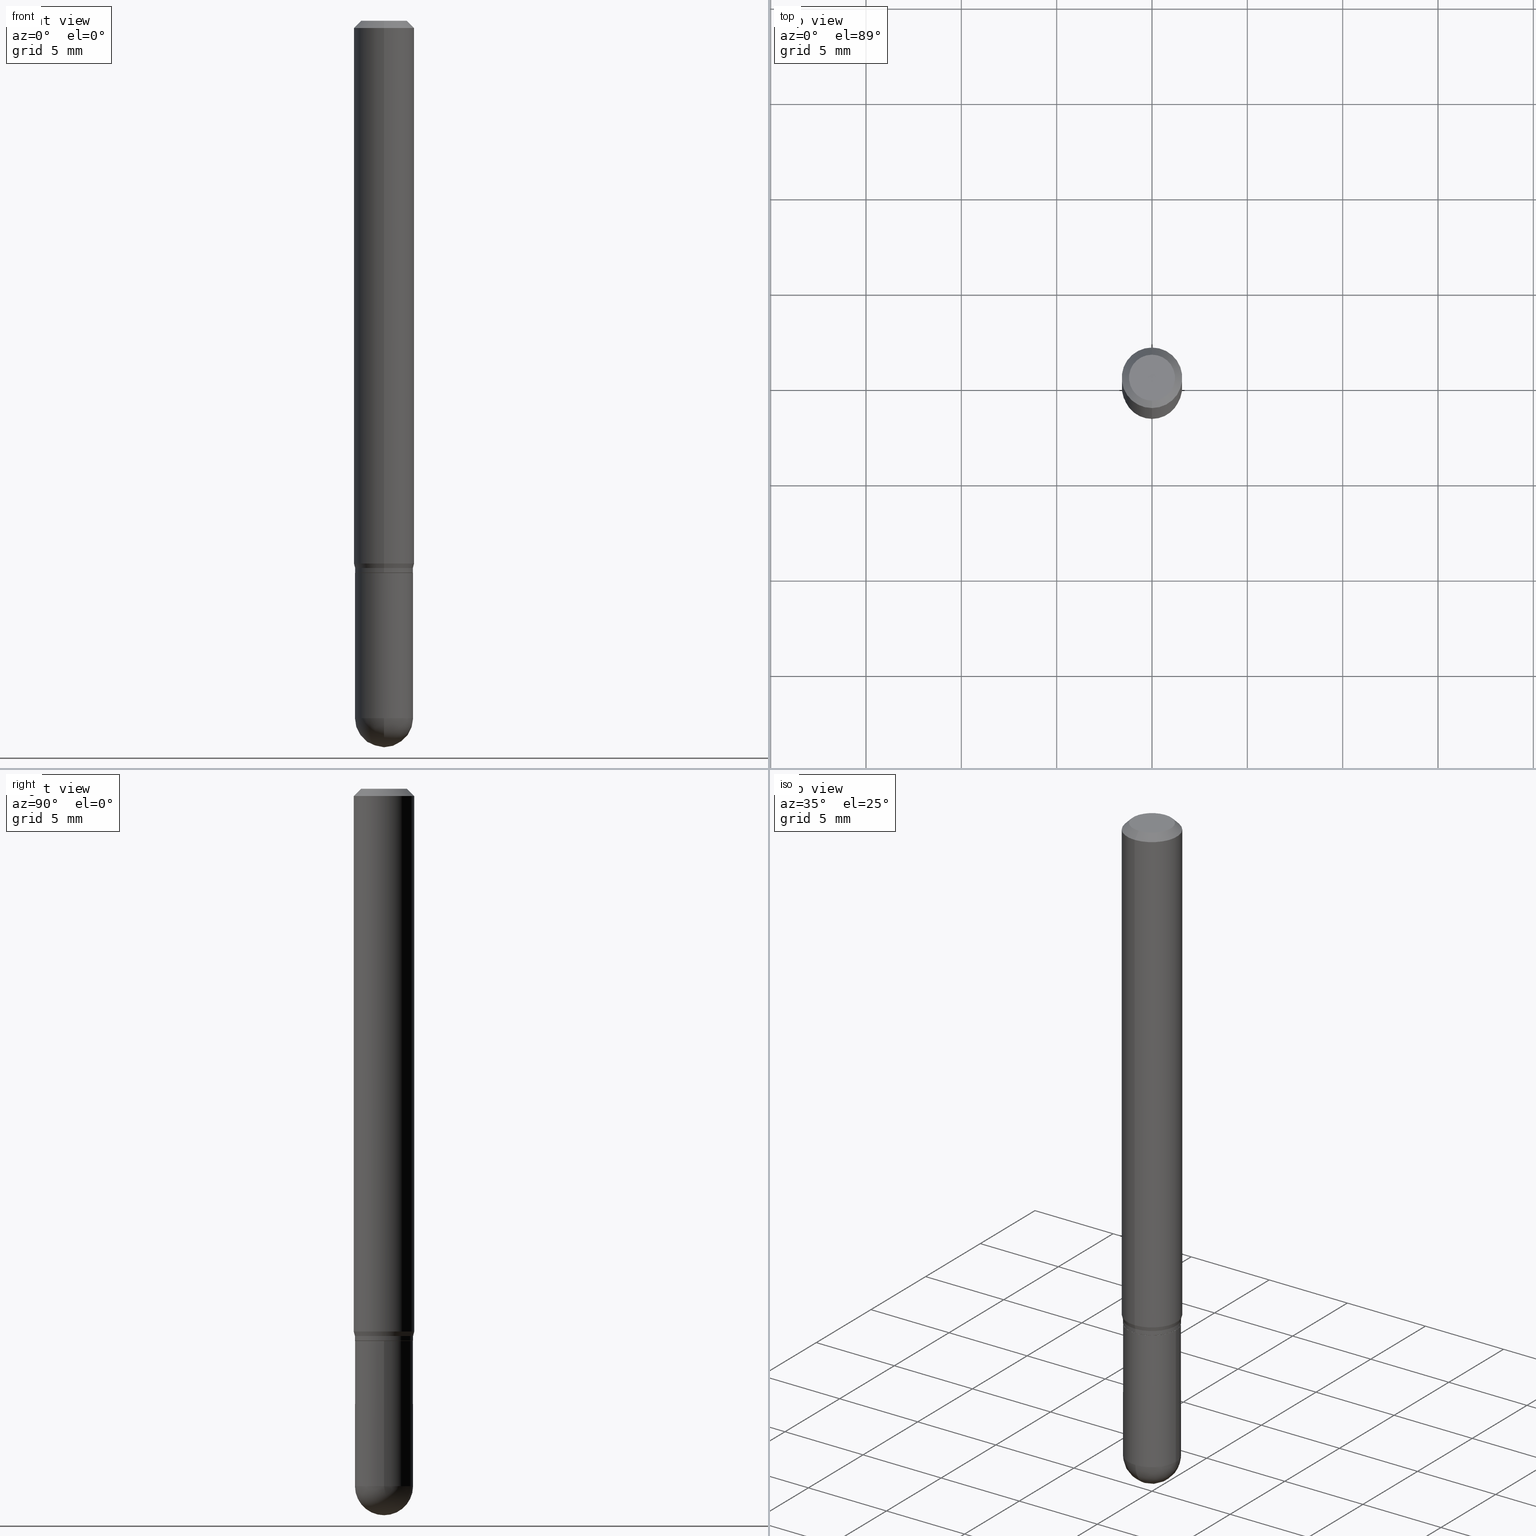
[diagram: canonical four-view strip — front | top / right | iso, engineering-drawing reading convention]
A machine part, canonical four-view strip (front | top / right | iso — engineering-drawing reading convention). The complete STEP part file that produces these views, byte-faithful:
ISO-10303-21;
HEADER;
FILE_DESCRIPTION (( 'STEP AP203' ),
    '1' );
FILE_NAME ('04453.STEP',
    '2024-03-08T19:40:41',
    ( '' ),
    ( '' ),
    'SwSTEP 2.0',
    'SolidWorks 2023',
    '' );
FILE_SCHEMA (( 'CONFIG_CONTROL_DESIGN' ));
ENDSEC;

DATA;
#1 = CARTESIAN_POINT ( 'NONE',  ( 2.763319240958280616E-29, -3.945460566701054609E-15, -1.130000000000000115 ) ) ;
#2 = VERTEX_POINT ( 'NONE', #9 ) ;
#3 = DIRECTION ( 'NONE',  ( -1.000000000000000000, 6.982962677686265922E-15, -4.883557194083112340E-29 ) ) ;
#4 = DATE_TIME_ROLE ( 'creation_date' ) ;
#5 = ORIENTED_EDGE ( 'NONE', *, *, #332, .T. ) ;
#6 = CARTESIAN_POINT ( 'NONE',  ( 2.740503205991935058E-29, -3.912883886846660154E-15, -1.120669872981078674 ) ) ;
#7 = CIRCLE ( 'NONE', #67, 0.05999999999999995615 ) ;
#8 = AXIS2_PLACEMENT_3D ( 'NONE', #412, #57, #253 ) ;
#9 = CARTESIAN_POINT ( 'NONE',  ( -4.364351673553912750E-16, -0.06250000000000005551, -0.01499999999999984852 ) ) ;
#10 = CARTESIAN_POINT ( 'NONE',  ( -4.364351673553916201E-16, -0.06250000000000000000, 2.182223764768282415E-16 ) ) ;
#11 = EDGE_CURVE ( 'NONE', #404, #190, #499, .T. ) ;
#12 = COORDINATED_UNIVERSAL_TIME_OFFSET ( 5, 0, .BEHIND. ) ;
#13 = ORIENTED_EDGE ( 'NONE', *, *, #228, .F. ) ;
#14 = AXIS2_PLACEMENT_3D ( 'NONE', #136, #379, #377 ) ;
#15 = CIRCLE ( 'NONE', #395, 0.06000000000000001166 ) ;
#16 = PERSON_AND_ORGANIZATION ( #491, #21 ) ;
#17 = LINE ( 'NONE', #143, #184 ) ;
#18 = DIRECTION ( 'NONE',  ( 1.000000000000000000, -6.982962677686268288E-15, 0.000000000000000000 ) ) ;
#19 = DIRECTION ( 'NONE',  ( -6.982962677686265922E-15, -1.000000000000000000, 3.491558023629251863E-15 ) ) ;
#20 = ORIENTED_EDGE ( 'NONE', *, *, #26, .T. ) ;
#21 = ORGANIZATION ( 'UNSPECIFIED', 'UNSPECIFIED', '' ) ;
#22 = CYLINDRICAL_SURFACE ( 'NONE', #454, 0.06250000000000000000 ) ;
#23 = DIRECTION ( 'NONE',  ( -2.445415257485203862E-29, 3.491558023629251863E-15, 1.000000000000000000 ) ) ;
#24 = CARTESIAN_POINT ( 'NONE',  ( 3.668122886227822345E-31, -5.237337035443900549E-17, -0.01500000000000006710 ) ) ;
#25 = EDGE_CURVE ( 'NONE', #505, #2, #361, .T. ) ;
#26 = EDGE_CURVE ( 'NONE', #509, #362, #169, .T. ) ;
#27 = DIRECTION ( 'NONE',  ( -6.982962677686265922E-15, -1.000000000000000000, 3.483106191921935554E-15 ) ) ;
#28 = DIRECTION ( 'NONE',  ( -2.445415257485203862E-29, 3.491558023629251863E-15, 1.000000000000000000 ) ) ;
#29 = DIRECTION ( 'NONE',  ( -2.445415257485203862E-29, 3.491558023629251863E-15, 1.000000000000000000 ) ) ;
#30 = DIRECTION ( 'NONE',  ( -2.445415257485203862E-29, 3.491558023629251863E-15, 1.000000000000000000 ) ) ;
#31 = CARTESIAN_POINT ( 'NONE',  ( -4.364351673553640100E-16, -0.06250000000000388578, -1.120669872981078452 ) ) ;
#32 = EDGE_LOOP ( 'NONE', ( #44, #92, #233, #347 ) ) ;
#33 = DIRECTION ( 'NONE',  ( 1.000000000000000000, -7.105427357601001070E-15, 4.926315508542082329E-29 ) ) ;
#34 = APPROVAL_DATE_TIME ( #343, #460 ) ;
#35 = EDGE_LOOP ( 'NONE', ( #112, #479, #101, #182 ) ) ;
#36 = CARTESIAN_POINT ( 'NONE',  ( 3.316907271900976096E-16, 0.04749999999999999362, -1.985973018849175399E-16 ) ) ;
#37 = ORIENTED_EDGE ( 'NONE', *, *, #125, .T. ) ;
#38 = AXIS2_PLACEMENT_3D ( 'NONE', #500, #305, #59 ) ;
#39 = LOCAL_TIME ( 14, 40, 41.00000000000000000, #326 ) ;
#40 = ORIENTED_EDGE ( 'NONE', *, *, #351, .F. ) ;
#41 = ADVANCED_FACE ( 'NONE', ( #413 ), #331, .T. ) ;
#42 = EDGE_CURVE ( 'NONE', #473, #2, #133, .T. ) ;
#43 = ORIENTED_EDGE ( 'NONE', *, *, #207, .F. ) ;
#44 = ORIENTED_EDGE ( 'NONE', *, *, #458, .F. ) ;
#45 = AXIS2_PLACEMENT_3D ( 'NONE', #419, #65, #453 ) ;
#46 = DIRECTION ( 'NONE',  ( -6.982962677686265922E-15, -1.000000000000000000, 4.553079989440423315E-15 ) ) ;
#47 = APPROVAL ( #203, 'UNSPECIFIED' ) ;
#48 = ORIENTED_EDGE ( 'NONE', *, *, #228, .T. ) ;
#49 = APPROVAL_DATE_TIME ( #172, #47 ) ;
#50 = AXIS2_PLACEMENT_3D ( 'NONE', #411, #261, #102 ) ;
#51 = CIRCLE ( 'NONE', #360, 0.06000000000000006023 ) ;
#52 = EDGE_CURVE ( 'NONE', #359, #473, #369, .T. ) ;
#53 = CARTESIAN_POINT ( 'NONE',  ( 4.263256414560951014E-16, 0.05999999999999495320, -1.440000000000000391 ) ) ;
#54 = EDGE_LOOP ( 'NONE', ( #43, #198, #5, #391 ) ) ;
#55 = DIRECTION ( 'NONE',  ( -6.982962677686265922E-15, -1.000000000000000000, 3.491558023629251863E-15 ) ) ;
#56 = AXIS2_PLACEMENT_3D ( 'NONE', #448, #376, #212 ) ;
#57 = DIRECTION ( 'NONE',  ( -2.445468806185136597E-29, 3.491481338843145583E-15, 1.000000000000000000 ) ) ;
#58 = ADVANCED_FACE ( 'NONE', ( #144 ), #22, .T. ) ;
#59 = DIRECTION ( 'NONE',  ( 1.000000000000000000, -6.982962677686266711E-15, 4.876176775795935793E-29 ) ) ;
#60 = EDGE_CURVE ( 'NONE', #153, #304, #317, .T. ) ;
#61 = CARTESIAN_POINT ( 'NONE',  ( -4.189777606611479882E-16, -0.06000000000000396683, -1.139499999999999735 ) ) ;
#62 = ORIENTED_EDGE ( 'NONE', *, *, #206, .F. ) ;
#63 = DIRECTION ( 'NONE',  ( -6.982962677686265922E-15, -1.000000000000000000, 3.483106191921935554E-15 ) ) ;
#64 = DIRECTION ( 'NONE',  ( -6.982962677686265922E-15, -1.000000000000000000, 4.591341165822291216E-15 ) ) ;
#65 = DIRECTION ( 'NONE',  ( -2.445415257485203581E-29, 3.491558023629251863E-15, 1.000000000000000000 ) ) ;
#66 = APPROVAL_STATUS ( 'not_yet_approved' ) ;
#67 = AXIS2_PLACEMENT_3D ( 'NONE', #386, #33, #161 ) ;
#68 = LOCAL_TIME ( 14, 40, 41.00000000000000000, #387 ) ;
#69 = EDGE_CURVE ( 'NONE', #371, #193, #287, .T. ) ;
#70 = ORIENTED_EDGE ( 'NONE', *, *, #69, .F. ) ;
#71 = CARTESIAN_POINT ( 'NONE',  ( 0.000000000000000000, 0.000000000000000000, 0.000000000000000000 ) ) ;
#72 = COORDINATED_UNIVERSAL_TIME_OFFSET ( 5, 0, .BEHIND. ) ;
#73 = ORIENTED_EDGE ( 'NONE', *, *, #165, .T. ) ;
#74 = FACE_OUTER_BOUND ( 'NONE', #118, .T. ) ;
#75 = FACE_OUTER_BOUND ( 'NONE', #54, .T. ) ;
#76 = EDGE_LOOP ( 'NONE', ( #464, #162, #325, #385, #13 ) ) ;
#77 = CYLINDRICAL_SURFACE ( 'NONE', #291, 0.06000000000000001166 ) ;
#78 = ADVANCED_FACE ( 'NONE', ( #219 ), #120, .T. ) ;
#79 = AXIS2_PLACEMENT_3D ( 'NONE', #213, #296, #373 ) ;
#80 = CIRCLE ( 'NONE', #8, 0.06000000000000001166 ) ;
#81 = PRODUCT_DEFINITION ( 'UNKNOWN', '', #194, #138 ) ;
#82 = APPLICATION_PROTOCOL_DEFINITION ( 'international standard', 'config_control_design', 1994, #335 ) ;
#83 = ORIENTED_EDGE ( 'NONE', *, *, #11, .F. ) ;
#84 = DIRECTION ( 'NONE',  ( -2.445415257485203862E-29, 3.491558023629251863E-15, 1.000000000000000000 ) ) ;
#85 = DATE_AND_TIME ( #443, #375 ) ;
#86 = EDGE_LOOP ( 'NONE', ( #230, #73, #402, #381 ) ) ;
#87 = EDGE_CURVE ( 'NONE', #153, #435, #178, .T. ) ;
#88 = ORIENTED_EDGE ( 'NONE', *, *, #420, .T. ) ;
#89 = AXIS2_PLACEMENT_3D ( 'NONE', #245, #168, #46 ) ;
#90 = AXIS2_PLACEMENT_3D ( 'NONE', #363, #185, #64 ) ;
#91 = DATE_AND_TIME ( #486, #288 ) ;
#92 = ORIENTED_EDGE ( 'NONE', *, *, #26, .F. ) ;
#93 = VECTOR ( 'NONE', #255, 39.37007874015748143 ) ;
#94 = CARTESIAN_POINT ( 'NONE',  ( -3.773273898774340269E-16, -0.04749999999999999362, 1.003524145973332999E-16 ) ) ;
#95 = DIRECTION ( 'NONE',  ( 5.024295867788190974E-15, 0.7071067811865681119, 0.7071067811865270336 ) ) ;
#96 = ADVANCED_FACE ( 'NONE', ( #494 ), #341, .T. ) ;
#97 = DIRECTION ( 'NONE',  ( -2.445415257485203862E-29, 3.491558023629251863E-15, 1.000000000000000000 ) ) ;
#98 = CARTESIAN_POINT ( 'NONE',  ( 4.263256414560890864E-16, 0.05999999999999625078, -1.130000000000000338 ) ) ;
#99 = AXIS2_PLACEMENT_3D ( 'NONE', #380, #29, #19 ) ;
#100 = CARTESIAN_POINT ( 'NONE',  ( 0.05999999999999999778, -4.399266486942362543E-15, -1.140000000000000124 ) ) ;
#101 = ORIENTED_EDGE ( 'NONE', *, *, #125, .F. ) ;
#102 = DIRECTION ( 'NONE',  ( -1.000000000000000000, 6.982962677686265922E-15, -4.876176775795935793E-29 ) ) ;
#103 = CARTESIAN_POINT ( 'NONE',  ( 4.352074256530896070E-16, 0.05999999999999625078, -1.130000000000000338 ) ) ;
#104 = CARTESIAN_POINT ( 'NONE',  ( 4.227729277772874483E-16, 0.05949999999999602135, -1.140000000000000346 ) ) ;
#105 = PERSON_AND_ORGANIZATION_ROLE ( 'design_owner' ) ;
#106 = DIRECTION ( 'NONE',  ( -6.982962677686265922E-15, -1.000000000000000000, 4.591341165822291216E-15 ) ) ;
#107 = EDGE_LOOP ( 'NONE', ( #205, #204, #284, #237 ) ) ;
#108 = CIRCLE ( 'NONE', #154, 0.06250000000000000000 ) ;
#109 = CYLINDRICAL_SURFACE ( 'NONE', #170, 0.06000000000000012962 ) ;
#110 = AXIS2_PLACEMENT_3D ( 'NONE', #111, #396, #197 ) ;
#111 = CARTESIAN_POINT ( 'NONE',  ( 3.668122886227822345E-31, -5.237337035443900549E-17, -0.01500000000000006710 ) ) ;
#112 = ORIENTED_EDGE ( 'NONE', *, *, #165, .F. ) ;
#113 = PLANE ( 'NONE',  #214 ) ;
#114 = ADVANCED_FACE ( 'NONE', ( #139 ), #276, .T. ) ;
#115 = ORIENTED_EDGE ( 'NONE', *, *, #410, .T. ) ;
#116 = ADVANCED_FACE ( 'NONE', ( #455 ), #264, .T. ) ;
#117 = LINE ( 'NONE', #192, #292 ) ;
#118 = EDGE_LOOP ( 'NONE', ( #20, #477 ) ) ;
#119 = CARTESIAN_POINT ( 'NONE',  ( -4.189777606611496152E-16, -0.06000000000000414030, -1.129999999999999893 ) ) ;
#120 = CONICAL_SURFACE ( 'NONE', #403, 0.06000000000000019901, 0.2617993877991505181 ) ;
#121 = CONICAL_SURFACE ( 'NONE', #110, 0.06250000000000000000, 0.7853981633974483900 ) ;
#122 = APPROVAL_DATE_TIME ( #91, #408 ) ;
#123 = EDGE_LOOP ( 'NONE', ( #399, #439, #70, #319, #37 ) ) ;
#124 = ORIENTED_EDGE ( 'NONE', *, *, #206, .T. ) ;
#125 = EDGE_CURVE ( 'NONE', #314, #388, #365, .T. ) ;
#126 = CARTESIAN_POINT ( 'NONE',  ( 1.601663642286483941E-45, -2.286851496596774819E-31, -6.549659152505615180E-17 ) ) ;
#127 = CIRCLE ( 'NONE', #339, 0.05999999999999995615 ) ;
#128 = CONICAL_SURFACE ( 'NONE', #440, 0.05949999999999999734, 0.7853981633974739252 ) ;
#129 = DATE_TIME_ROLE ( 'classification_date' ) ;
#130 = COORDINATED_UNIVERSAL_TIME_OFFSET ( 5, 0, .BEHIND. ) ;
#131 = ADVANCED_FACE ( 'NONE', ( #294 ), #451, .F. ) ;
#132 = EDGE_CURVE ( 'NONE', #404, #359, #334, .T. ) ;
#133 = CIRCLE ( 'NONE', #475, 0.06250000000000000000 ) ;
#134 = APPROVAL_PERSON_ORGANIZATION ( #364, #408, #323 ) ;
#135 = CARTESIAN_POINT ( 'NONE',  ( 4.440892098500901277E-16, 0.06249999999999995143, -0.01500000000000028394 ) ) ;
#136 = CARTESIAN_POINT ( 'NONE',  ( 2.787773393533133019E-29, -3.980376146937347826E-15, -1.140000000000000124 ) ) ;
#137 = EDGE_CURVE ( 'NONE', #314, #371, #300, .T. ) ;
#138 = DESIGN_CONTEXT ( 'detailed design', #366, 'design' ) ;
#139 = FACE_OUTER_BOUND ( 'NONE', #426, .T. ) ;
#140 = DIRECTION ( 'NONE',  ( -2.445415257485203862E-29, 3.491558023629251863E-15, 1.000000000000000000 ) ) ;
#141 = DIRECTION ( 'NONE',  ( 1.839019923739601893E-15, 0.2588190451025252359, 0.9659258262890670910 ) ) ;
#142 = CLOSED_SHELL ( 'NONE', ( #41, #485, #145, #96, #171 ) ) ;
#143 = CARTESIAN_POINT ( 'NONE',  ( -4.287811248607203282E-16, -0.06250000000000005551, -0.01499999999999984852 ) ) ;
#144 = FACE_OUTER_BOUND ( 'NONE', #107, .T. ) ;
#145 = ADVANCED_FACE ( 'NONE', ( #183 ), #147, .F. ) ;
#146 = CARTESIAN_POINT ( 'NONE',  ( 0.000000000000000000, 0.000000000000000000, 0.000000000000000000 ) ) ;
#147 = PLANE ( 'NONE',  #50 ) ;
#148 =( NAMED_UNIT ( * ) SI_UNIT ( $, .STERADIAN. ) SOLID_ANGLE_UNIT ( ) );
#149 = ORIENTED_EDGE ( 'NONE', *, *, #52, .F. ) ;
#150 = DIRECTION ( 'NONE',  ( -2.445468806185136597E-29, 3.491481338843145583E-15, 1.000000000000000000 ) ) ;
#151 = AXIS2_PLACEMENT_3D ( 'NONE', #345, #150, #308 ) ;
#152 = DIRECTION ( 'NONE',  ( -2.445415257485203862E-29, 3.491558023629251863E-15, 1.000000000000000000 ) ) ;
#153 = VERTEX_POINT ( 'NONE', #417 ) ;
#154 = AXIS2_PLACEMENT_3D ( 'NONE', #6, #163, #270 ) ;
#155 = DIRECTION ( 'NONE',  ( -6.982962677686265922E-15, -1.000000000000000000, 4.553079989440423315E-15 ) ) ;
#156 = APPROVAL_PERSON_ORGANIZATION ( #358, #47, #199 ) ;
#157 = EDGE_CURVE ( 'NONE', #480, #193, #354, .T. ) ;
#158 = ORIENTED_EDGE ( 'NONE', *, *, #260, .F. ) ;
#159 =( NAMED_UNIT ( * ) PLANE_ANGLE_UNIT ( ) SI_UNIT ( $, .RADIAN. ) );
#160 = ORIENTED_EDGE ( 'NONE', *, *, #42, .F. ) ;
#161 = DIRECTION ( 'NONE',  ( 7.105427357601001070E-15, 1.000000000000000000, 0.000000000000000000 ) ) ;
#162 = ORIENTED_EDGE ( 'NONE', *, *, #393, .T. ) ;
#163 = DIRECTION ( 'NONE',  ( -2.445415257485203862E-29, 3.491558023629251863E-15, 1.000000000000000000 ) ) ;
#164 = APPROVAL_PERSON_ORGANIZATION ( #421, #460, #226 ) ;
#165 = EDGE_CURVE ( 'NONE', #222, #344, #127, .T. ) ;
#166 = EDGE_LOOP ( 'NONE', ( #471, #278, #124, #512 ) ) ;
#167 = DIRECTION ( 'NONE',  ( -2.445415257485203862E-29, 3.491558023629251863E-15, 1.000000000000000000 ) ) ;
#168 = DIRECTION ( 'NONE',  ( -2.445415257485203862E-29, 3.491558023629251863E-15, 1.000000000000000000 ) ) ;
#169 = CIRCLE ( 'NONE', #258, 0.04749999999999999362 ) ;
#170 = AXIS2_PLACEMENT_3D ( 'NONE', #71, #231, #389 ) ;
#171 = ADVANCED_FACE ( 'NONE', ( #227 ), #77, .T. ) ;
#172 = DATE_AND_TIME ( #441, #330 ) ;
#173 = EDGE_CURVE ( 'NONE', #222, #388, #7, .T. ) ;
#174 = DIRECTION ( 'NONE',  ( -6.982962677686265922E-15, -1.000000000000000000, 4.553079989440442247E-15 ) ) ;
#175 = AXIS2_PLACEMENT_3D ( 'NONE', #504, #337, #174 ) ;
#176 = CC_DESIGN_APPROVAL ( #460, ( #81 ) ) ;
#177 = CARTESIAN_POINT ( 'NONE',  ( -4.189777606611406419E-16, -0.06000000000000501460, -1.439999999999999947 ) ) ;
#178 = LINE ( 'NONE', #104, #235 ) ;
#179 = LINE ( 'NONE', #378, #309 ) ;
#180 = DIRECTION ( 'NONE',  ( -2.445468806185136597E-29, 3.491481338843145583E-15, 1.000000000000000000 ) ) ;
#181 = DIRECTION ( 'NONE',  ( -6.982962677686265922E-15, -1.000000000000000000, 4.553079989440434359E-15 ) ) ;
#182 = ORIENTED_EDGE ( 'NONE', *, *, #262, .F. ) ;
#183 = FACE_OUTER_BOUND ( 'NONE', #321, .T. ) ;
#184 = VECTOR ( 'NONE', #489, 39.37007874015748143 ) ;
#185 = DIRECTION ( 'NONE',  ( -2.445415257485203862E-29, 3.491558023629251863E-15, 1.000000000000000000 ) ) ;
#186 = CARTESIAN_POINT ( 'NONE',  ( 2.787773393533133019E-29, -3.980376146937347826E-15, -1.140000000000000124 ) ) ;
#187 = DIRECTION ( 'NONE',  ( 0.000000000000000000, 0.000000000000000000, 1.000000000000000000 ) ) ;
#188 = ORIENTED_EDGE ( 'NONE', *, *, #322, .F. ) ;
#189 = CARTESIAN_POINT ( 'NONE',  ( 3.660506712675090959E-29, -5.248243829457045539E-15, -1.500000000000000222 ) ) ;
#190 = VERTEX_POINT ( 'NONE', #316 ) ;
#191 = DIRECTION ( 'NONE',  ( 6.982962677686265922E-15, 1.000000000000000000, -3.491558023629251863E-15 ) ) ;
#192 = CARTESIAN_POINT ( 'NONE',  ( -4.154862793223048825E-16, -0.05950000000000398026, -1.139999999999999902 ) ) ;
#193 = VERTEX_POINT ( 'NONE', #469 ) ;
#194 = PRODUCT_DEFINITION_FORMATION_WITH_SPECIFIED_SOURCE ( 'ANY', '', #446, .NOT_KNOWN. ) ;
#195 = DIRECTION ( 'NONE',  ( -6.982962677686265922E-15, -1.000000000000000000, 4.553079989440423315E-15 ) ) ;
#196 = ORIENTED_EDGE ( 'NONE', *, *, #410, .F. ) ;
#197 = DIRECTION ( 'NONE',  ( 6.982962677686265922E-15, 1.000000000000000000, -3.483106191921935554E-15 ) ) ;
#198 = ORIENTED_EDGE ( 'NONE', *, *, #458, .T. ) ;
#199 = APPROVAL_ROLE ( '' ) ;
#200 = ORIENTED_EDGE ( 'NONE', *, *, #298, .T. ) ;
#201 = CIRCLE ( 'NONE', #488, 0.04749999999999999362 ) ;
#202 = AXIS2_PLACEMENT_3D ( 'NONE', #232, #425, #306 ) ;
#203 = APPROVAL_STATUS ( 'not_yet_approved' ) ;
#204 = ORIENTED_EDGE ( 'NONE', *, *, #52, .T. ) ;
#205 = ORIENTED_EDGE ( 'NONE', *, *, #211, .T. ) ;
#206 = EDGE_CURVE ( 'NONE', #190, #505, #474, .T. ) ;
#207 = EDGE_CURVE ( 'NONE', #362, #509, #201, .T. ) ;
#208 = APPROVAL_STATUS ( 'not_yet_approved' ) ;
#209 = CARTESIAN_POINT ( 'NONE',  ( 3.521475080906597305E-29, -5.027733127934130649E-15, -1.440000000000000169 ) ) ;
#210 = CARTESIAN_POINT ( 'NONE',  ( 0.000000000000000000, 0.000000000000000000, 0.000000000000000000 ) ) ;
#211 = EDGE_CURVE ( 'NONE', #505, #359, #108, .T. ) ;
#212 = DIRECTION ( 'NONE',  ( -6.982962677686265922E-15, -1.000000000000000000, 4.370956789862821150E-15 ) ) ;
#213 = CARTESIAN_POINT ( 'NONE',  ( 0.000000000000000000, 0.000000000000000000, 0.000000000000000000 ) ) ;
#214 = AXIS2_PLACEMENT_3D ( 'NONE', #36, #234, #191 ) ;
#215 = CC_DESIGN_APPROVAL ( #408, ( #194 ) ) ;
#216 = CARTESIAN_POINT ( 'NONE',  ( 4.263256414560609832E-16, 0.06000000000000012962, -2.094934814177555536E-16 ) ) ;
#217 = CARTESIAN_POINT ( 'NONE',  ( 3.521475080906597305E-29, -5.027733127934130649E-15, -1.440000000000000169 ) ) ;
#218 = CARTESIAN_POINT ( 'NONE',  ( 4.263256414560887906E-16, 0.05999999999999614669, -1.139500000000000401 ) ) ;
#219 = FACE_OUTER_BOUND ( 'NONE', #166, .T. ) ;
#220 = CC_DESIGN_PERSON_AND_ORGANIZATION_ASSIGNMENT ( #16, #437, ( #194 ) ) ;
#221 = CARTESIAN_POINT ( 'NONE',  ( 2.786550685904389894E-29, -3.978630367925532929E-15, -1.139500000000000179 ) ) ;
#222 = VERTEX_POINT ( 'NONE', #189 ) ;
#223 = CARTESIAN_POINT ( 'NONE',  ( 4.440892098500625669E-16, 0.06250000000000000000, -2.182223764768282415E-16 ) ) ;
#224 = AXIS2_PLACEMENT_3D ( 'NONE', #217, #180, #329 ) ;
#225 = CONICAL_SURFACE ( 'NONE', #301, 0.06250000000000000000, 0.7853981633974483900 ) ;
#226 = APPROVAL_ROLE ( '' ) ;
#227 = FACE_OUTER_BOUND ( 'NONE', #76, .T. ) ;
#228 = EDGE_CURVE ( 'NONE', #193, #371, #372, .T. ) ;
#229 = LENGTH_MEASURE_WITH_UNIT ( LENGTH_MEASURE( 0.02539999999999999897 ), #390 );
#230 = ORIENTED_EDGE ( 'NONE', *, *, #173, .F. ) ;
#231 = DIRECTION ( 'NONE',  ( -2.445415257485203862E-29, 3.491558023629251863E-15, 1.000000000000000000 ) ) ;
#232 = CARTESIAN_POINT ( 'NONE',  ( 3.516344083171520973E-29, -5.035081008729014505E-15, -1.440000000000000169 ) ) ;
#233 = ORIENTED_EDGE ( 'NONE', *, *, #481, .T. ) ;
#234 = DIRECTION ( 'NONE',  ( 2.445415257485203581E-29, -3.491558023629251863E-15, -1.000000000000000000 ) ) ;
#235 = VECTOR ( 'NONE', #95, 39.37007874015748143 ) ;
#236 = DIRECTION ( 'NONE',  ( 6.982962677686265922E-15, 1.000000000000000000, -3.483106191921935554E-15 ) ) ;
#237 = ORIENTED_EDGE ( 'NONE', *, *, #25, .F. ) ;
#238 = AXIS2_PLACEMENT_3D ( 'NONE', #348, #510, #155 ) ;
#239 = DIRECTION ( 'NONE',  ( -2.445468806185136597E-29, 3.491481338843145583E-15, 1.000000000000000000 ) ) ;
#240 =( CONVERSION_BASED_UNIT ( 'INCH', #229 ) LENGTH_UNIT ( ) NAMED_UNIT ( #484 ) );
#241 = EDGE_LOOP ( 'NONE', ( #40, #115, #88, #83 ) ) ;
#242 = DIRECTION ( 'NONE',  ( -6.982962677686266711E-15, -1.000000000000000000, 3.491558023629252258E-15 ) ) ;
#243 = ADVANCED_FACE ( 'NONE', ( #465 ), #109, .T. ) ;
#244 = EDGE_LOOP ( 'NONE', ( #313, #269, #324, #62 ) ) ;
#245 = CARTESIAN_POINT ( 'NONE',  ( 2.763319240958280616E-29, -3.945460566701054609E-15, -1.130000000000000115 ) ) ;
#246 = CIRCLE ( 'NONE', #383, 0.06000000000000006023 ) ;
#247 = EDGE_LOOP ( 'NONE', ( #149, #429, #490, #160 ) ) ;
#248 = CC_DESIGN_PERSON_AND_ORGANIZATION_ASSIGNMENT ( #283, #281, ( #194 ) ) ;
#249 = ADVANCED_FACE ( 'NONE', ( #74 ), #113, .F. ) ;
#250 = PERSON_AND_ORGANIZATION ( #491, #21 ) ;
#251 = VECTOR ( 'NONE', #459, 39.37007874015748143 ) ;
#252 = CIRCLE ( 'NONE', #56, 0.06250000000000000000 ) ;
#253 = DIRECTION ( 'NONE',  ( 1.000000000000000000, -6.982962677686266711E-15, 0.000000000000000000 ) ) ;
#254 = DIRECTION ( 'NONE',  ( 2.445415257485203862E-29, -3.491558023629251863E-15, -1.000000000000000000 ) ) ;
#255 = DIRECTION ( 'NONE',  ( -2.445468806185136877E-29, 3.491481338843145188E-15, 1.000000000000000000 ) ) ;
#256 = CARTESIAN_POINT ( 'NONE',  ( 4.440892098500901277E-16, 0.06249999999999610728, -1.120669872981078896 ) ) ;
#257 = DIRECTION ( 'NONE',  ( -6.982962677686265922E-15, -1.000000000000000000, 4.553079989440423315E-15 ) ) ;
#258 = AXIS2_PLACEMENT_3D ( 'NONE', #126, #442, #406 ) ;
#259 = DIRECTION ( 'NONE',  ( -2.445468806185136597E-29, 3.491481338843145583E-15, 1.000000000000000000 ) ) ;
#260 = EDGE_CURVE ( 'NONE', #190, #404, #456, .T. ) ;
#261 = DIRECTION ( 'NONE',  ( 2.438088387897960049E-29, -3.491481338843145188E-15, -1.000000000000000000 ) ) ;
#262 = EDGE_CURVE ( 'NONE', #344, #314, #279, .T. ) ;
#263 = CYLINDRICAL_SURFACE ( 'NONE', #99, 0.06250000000000000000 ) ;
#264 = CYLINDRICAL_SURFACE ( 'NONE', #79, 0.06000000000000012962 ) ;
#265 = FACE_OUTER_BOUND ( 'NONE', #244, .T. ) ;
#266 = CARTESIAN_POINT ( 'NONE',  ( 2.787834439051055989E-29, -3.980288726281186698E-15, -1.140000000000000124 ) ) ;
#267 = VECTOR ( 'NONE', #400, 39.37007874015748143 ) ;
#268 = AXIS2_PLACEMENT_3D ( 'NONE', #146, #187, #434 ) ;
#269 = ORIENTED_EDGE ( 'NONE', *, *, #132, .T. ) ;
#270 = DIRECTION ( 'NONE',  ( -6.982962677686265922E-15, -1.000000000000000000, 4.370956789862821150E-15 ) ) ;
#271 = ORIENTED_EDGE ( 'NONE', *, *, #87, .F. ) ;
#272 = DIRECTION ( 'NONE',  ( -2.445468806185136597E-29, 3.491481338843145583E-15, 1.000000000000000000 ) ) ;
#273 = LINE ( 'NONE', #352, #414 ) ;
#274 = EDGE_LOOP ( 'NONE', ( #397, #438, #158, #310 ) ) ;
#275 = DIRECTION ( 'NONE',  ( -6.982962677686265922E-15, -1.000000000000000000, 0.000000000000000000 ) ) ;
#276 = CONICAL_SURFACE ( 'NONE', #14, 0.05949999999999999734, 0.7853981633974739252 ) ;
#277 = MECHANICAL_CONTEXT ( 'NONE', #335, 'mechanical' ) ;
#278 = ORIENTED_EDGE ( 'NONE', *, *, #11, .T. ) ;
#279 = CIRCLE ( 'NONE', #467, 0.06000000000000001166 ) ;
#280 = DIRECTION ( 'NONE',  ( 1.000000000000000000, -6.982962677686266711E-15, 4.876176775795935793E-29 ) ) ;
#281 = PERSON_AND_ORGANIZATION_ROLE ( 'creator' ) ;
#282 = ORIENTED_EDGE ( 'NONE', *, *, #507, .T. ) ;
#283 = PERSON_AND_ORGANIZATION ( #491, #21 ) ;
#284 = ORIENTED_EDGE ( 'NONE', *, *, #332, .F. ) ;
#285 = EDGE_LOOP ( 'NONE', ( #350, #416 ) ) ;
#286 = CC_DESIGN_PERSON_AND_ORGANIZATION_ASSIGNMENT ( #250, #407, ( #482 ) ) ;
#287 = CIRCLE ( 'NONE', #423, 0.05999999999999999778 ) ;
#288 = LOCAL_TIME ( 14, 40, 41.00000000000000000, #12 ) ;
#289 = ADVANCED_BREP_SHAPE_REPRESENTATION ( '04453', ( #338, #502, #268 ), #501 ) ;
#290 = SHAPE_DEFINITION_REPRESENTATION ( #340, #289 ) ;
#291 = AXIS2_PLACEMENT_3D ( 'NONE', #506, #239, #280 ) ;
#292 = VECTOR ( 'NONE', #463, 39.37007874015748143 ) ;
#293 = FACE_OUTER_BOUND ( 'NONE', #32, .T. ) ;
#294 = FACE_OUTER_BOUND ( 'NONE', #285, .T. ) ;
#295 = DIRECTION ( 'NONE',  ( -6.982962677686265922E-15, -1.000000000000000000, 4.591341165822291216E-15 ) ) ;
#296 = DIRECTION ( 'NONE',  ( -2.445415257485203862E-29, 3.491558023629251863E-15, 1.000000000000000000 ) ) ;
#297 = PRODUCT_RELATED_PRODUCT_CATEGORY ( 'detail', '', ( #446 ) ) ;
#298 = EDGE_CURVE ( 'NONE', #304, #153, #367, .T. ) ;
#299 = CARTESIAN_POINT ( 'NONE',  ( 2.787773393533133019E-29, -3.980376146937347826E-15, -1.140000000000000124 ) ) ;
#300 = LINE ( 'NONE', #422, #93 ) ;
#301 = AXIS2_PLACEMENT_3D ( 'NONE', #450, #254, #236 ) ;
#302 = DIRECTION ( 'NONE',  ( -2.445468806185136597E-29, 3.491481338843145583E-15, 1.000000000000000000 ) ) ;
#303 = SPHERICAL_SURFACE ( 'NONE', #202, 0.05999999999999995615 ) ;
#304 = VERTEX_POINT ( 'NONE', #333 ) ;
#305 = DIRECTION ( 'NONE',  ( -2.445468806185136597E-29, 3.491481338843145583E-15, 1.000000000000000000 ) ) ;
#306 = DIRECTION ( 'NONE',  ( -6.982962677686265922E-15, -1.000000000000000000, 4.553079989440442247E-15 ) ) ;
#307 = ORIENTED_EDGE ( 'NONE', *, *, #69, .T. ) ;
#308 = DIRECTION ( 'NONE',  ( 1.000000000000000000, -6.982962677686268288E-15, 0.000000000000000000 ) ) ;
#309 = VECTOR ( 'NONE', #140, 39.37007874015748143 ) ;
#310 = ORIENTED_EDGE ( 'NONE', *, *, #420, .F. ) ;
#311 = CARTESIAN_POINT ( 'NONE',  ( 3.521475080906597305E-29, -5.027733127934130649E-15, -1.440000000000000169 ) ) ;
#312 = CARTESIAN_POINT ( 'NONE',  ( 3.840629472727447874E-16, 0.04749999999999999362, -2.313455976474456035E-16 ) ) ;
#313 = ORIENTED_EDGE ( 'NONE', *, *, #260, .T. ) ;
#314 = VERTEX_POINT ( 'NONE', #457 ) ;
#315 = EDGE_CURVE ( 'NONE', #359, #505, #252, .T. ) ;
#316 = CARTESIAN_POINT ( 'NONE',  ( -4.189777606611496152E-16, -0.06000000000000414030, -1.129999999999999893 ) ) ;
#317 = CIRCLE ( 'NONE', #447, 0.05949999999999999734 ) ;
#318 = CALENDAR_DATE ( 2024, 8, 3 ) ;
#319 = ORIENTED_EDGE ( 'NONE', *, *, #137, .F. ) ;
#320 = CARTESIAN_POINT ( 'NONE',  ( 3.516344083171520973E-29, -5.035081008729014505E-15, -1.440000000000000169 ) ) ;
#321 = EDGE_LOOP ( 'NONE', ( #307, #48 ) ) ;
#322 = EDGE_CURVE ( 'NONE', #353, #435, #51, .T. ) ;
#323 = APPROVAL_ROLE ( '' ) ;
#324 = ORIENTED_EDGE ( 'NONE', *, *, #211, .F. ) ;
#325 = ORIENTED_EDGE ( 'NONE', *, *, #262, .T. ) ;
#326 = COORDINATED_UNIVERSAL_TIME_OFFSET ( 5, 0, .BEHIND. ) ;
#327 = ADVANCED_FACE ( 'NONE', ( #503 ), #263, .T. ) ;
#328 = DIRECTION ( 'NONE',  ( 1.000000000000000000, -6.982962677686266711E-15, 0.000000000000000000 ) ) ;
#329 = DIRECTION ( 'NONE',  ( 1.000000000000000000, -6.982962677686266711E-15, 0.000000000000000000 ) ) ;
#330 = LOCAL_TIME ( 14, 40, 41.00000000000000000, #130 ) ;
#331 = CYLINDRICAL_SURFACE ( 'NONE', #38, 0.06000000000000001166 ) ;
#332 = EDGE_CURVE ( 'NONE', #2, #473, #449, .T. ) ;
#333 = CARTESIAN_POINT ( 'NONE',  ( -4.154862793223048825E-16, -0.05950000000000398026, -1.139999999999999902 ) ) ;
#334 = LINE ( 'NONE', #98, #433 ) ;
#335 = APPLICATION_CONTEXT ( 'configuration controlled 3d designs of mechanical parts and assemblies' ) ;
#336 = UNCERTAINTY_MEASURE_WITH_UNIT (LENGTH_MEASURE( 1.000000000000000082E-05 ), #240, 'distance_accuracy_value', 'NONE');
#337 = DIRECTION ( 'NONE',  ( 1.000000000000000000, -6.982962677686265922E-15, 4.883557194083112340E-29 ) ) ;
#338 = MANIFOLD_SOLID_BREP ( 'Body-Move/Copy2[1]', #142 ) ;
#339 = AXIS2_PLACEMENT_3D ( 'NONE', #320, #3, #275 ) ;
#340 = PRODUCT_DEFINITION_SHAPE ( 'NONE', 'NONE',  #81 ) ;
#341 = SPHERICAL_SURFACE ( 'NONE', #175, 0.05999999999999995615 ) ;
#342 = ADVANCED_FACE ( 'NONE', ( #495 ), #128, .T. ) ;
#343 = DATE_AND_TIME ( #384, #68 ) ;
#344 = VERTEX_POINT ( 'NONE', #177 ) ;
#345 = CARTESIAN_POINT ( 'NONE',  ( 2.787834439051055989E-29, -3.980288726281186698E-15, -1.140000000000000124 ) ) ;
#346 = PERSON_AND_ORGANIZATION ( #491, #21 ) ;
#347 = ORIENTED_EDGE ( 'NONE', *, *, #42, .T. ) ;
#348 = CARTESIAN_POINT ( 'NONE',  ( 2.763319240958280616E-29, -3.945460566701054609E-15, -1.130000000000000115 ) ) ;
#349 = VECTOR ( 'NONE', #97, 39.37007874015748143 ) ;
#350 = ORIENTED_EDGE ( 'NONE', *, *, #298, .F. ) ;
#351 = EDGE_CURVE ( 'NONE', #435, #404, #415, .T. ) ;
#352 = CARTESIAN_POINT ( 'NONE',  ( 4.364351673553919652E-16, 0.06249999999999995143, -0.01500000000000028394 ) ) ;
#353 = VERTEX_POINT ( 'NONE', #61 ) ;
#354 = LINE ( 'NONE', #472, #267 ) ;
#355 = PERSON_AND_ORGANIZATION ( #491, #21 ) ;
#356 = ORIENTED_EDGE ( 'NONE', *, *, #60, .T. ) ;
#357 = VECTOR ( 'NONE', #436, 39.37007874015748854 ) ;
#358 = PERSON_AND_ORGANIZATION ( #491, #21 ) ;
#359 = VERTEX_POINT ( 'NONE', #256 ) ;
#360 = AXIS2_PLACEMENT_3D ( 'NONE', #370, #23, #452 ) ;
#361 = LINE ( 'NONE', #10, #466 ) ;
#362 = VERTEX_POINT ( 'NONE', #94 ) ;
#363 = CARTESIAN_POINT ( 'NONE',  ( 2.787773393533133019E-29, -3.980376146937347826E-15, -1.140000000000000124 ) ) ;
#364 = PERSON_AND_ORGANIZATION ( #491, #21 ) ;
#365 = CIRCLE ( 'NONE', #224, 0.06000000000000001166 ) ;
#366 = APPLICATION_CONTEXT ( 'configuration controlled 3d designs of mechanical parts and assemblies' ) ;
#367 = CIRCLE ( 'NONE', #90, 0.05949999999999999734 ) ;
#368 = DIRECTION ( 'NONE',  ( -2.445415257485203862E-29, 3.491558023629251863E-15, 1.000000000000000000 ) ) ;
#369 = LINE ( 'NONE', #223, #251 ) ;
#370 = CARTESIAN_POINT ( 'NONE',  ( 2.786550685904389894E-29, -3.978630367925532929E-15, -1.139500000000000179 ) ) ;
#371 = VERTEX_POINT ( 'NONE', #100 ) ;
#372 = CIRCLE ( 'NONE', #151, 0.05999999999999999778 ) ;
#373 = DIRECTION ( 'NONE',  ( -6.982962677686265922E-15, -1.000000000000000000, 3.491558023629251863E-15 ) ) ;
#374 = EDGE_CURVE ( 'NONE', #388, #480, #80, .T. ) ;
#375 = LOCAL_TIME ( 14, 40, 41.00000000000000000, #72 ) ;
#376 = DIRECTION ( 'NONE',  ( -2.445415257485203862E-29, 3.491558023629251863E-15, 1.000000000000000000 ) ) ;
#377 = DIRECTION ( 'NONE',  ( -6.982962677686265922E-15, -1.000000000000000000, 4.591341165822291216E-15 ) ) ;
#378 = CARTESIAN_POINT ( 'NONE',  ( -4.189777606611768802E-16, -0.06000000000000012962, 2.094934814177555536E-16 ) ) ;
#379 = DIRECTION ( 'NONE',  ( -2.445415257485203862E-29, 3.491558023629251863E-15, 1.000000000000000000 ) ) ;
#380 = CARTESIAN_POINT ( 'NONE',  ( 0.000000000000000000, 0.000000000000000000, 0.000000000000000000 ) ) ;
#381 = ORIENTED_EDGE ( 'NONE', *, *, #374, .F. ) ;
#382 = CARTESIAN_POINT ( 'NONE',  ( 2.763319240958280616E-29, -3.945460566701054609E-15, -1.130000000000000115 ) ) ;
#383 = AXIS2_PLACEMENT_3D ( 'NONE', #221, #368, #181 ) ;
#384 = CALENDAR_DATE ( 2024, 8, 3 ) ;
#385 = ORIENTED_EDGE ( 'NONE', *, *, #137, .T. ) ;
#386 = CARTESIAN_POINT ( 'NONE',  ( 3.516344083171520973E-29, -5.035081008729014505E-15, -1.440000000000000169 ) ) ;
#387 = COORDINATED_UNIVERSAL_TIME_OFFSET ( 5, 0, .BEHIND. ) ;
#388 = VERTEX_POINT ( 'NONE', #53 ) ;
#389 = DIRECTION ( 'NONE',  ( -6.982962677686265922E-15, -1.000000000000000000, 3.491558023629251863E-15 ) ) ;
#390 =( LENGTH_UNIT ( ) NAMED_UNIT ( * ) SI_UNIT ( $, .METRE. ) );
#391 = ORIENTED_EDGE ( 'NONE', *, *, #481, .F. ) ;
#392 = CC_DESIGN_PERSON_AND_ORGANIZATION_ASSIGNMENT ( #355, #105, ( #446 ) ) ;
#393 = EDGE_CURVE ( 'NONE', #480, #344, #15, .T. ) ;
#394 = CLOSED_SHELL ( 'NONE', ( #116, #114, #497, #58, #487, #78, #327, #478, #249, #131, #342, #243 ) ) ;
#395 = AXIS2_PLACEMENT_3D ( 'NONE', #209, #259, #328 ) ;
#396 = DIRECTION ( 'NONE',  ( 2.445415257485203862E-29, -3.491558023629251863E-15, -1.000000000000000000 ) ) ;
#397 = ORIENTED_EDGE ( 'NONE', *, *, #322, .T. ) ;
#398 = DIRECTION ( 'NONE',  ( 4.937700262164548042E-15, 0.7071067811865451302, -0.7071067811865499042 ) ) ;
#399 = ORIENTED_EDGE ( 'NONE', *, *, #374, .T. ) ;
#400 = DIRECTION ( 'NONE',  ( -2.445468806185136877E-29, 3.491481338843145188E-15, 1.000000000000000000 ) ) ;
#401 = SECURITY_CLASSIFICATION_LEVEL ( 'unclassified' ) ;
#402 = ORIENTED_EDGE ( 'NONE', *, *, #393, .F. ) ;
#403 = AXIS2_PLACEMENT_3D ( 'NONE', #382, #30, #257 ) ;
#404 = VERTEX_POINT ( 'NONE', #103 ) ;
#405 = CC_DESIGN_SECURITY_CLASSIFICATION ( #482, ( #194 ) ) ;
#406 = DIRECTION ( 'NONE',  ( -6.982962677686266711E-15, -1.000000000000000000, 3.491558023629252258E-15 ) ) ;
#407 = PERSON_AND_ORGANIZATION_ROLE ( 'classification_officer' ) ;
#408 = APPROVAL ( #208, 'UNSPECIFIED' ) ;
#409 = DIRECTION ( 'NONE',  ( -2.445415257485203862E-29, 3.491558023629251863E-15, 1.000000000000000000 ) ) ;
#410 = EDGE_CURVE ( 'NONE', #435, #353, #246, .T. ) ;
#411 = CARTESIAN_POINT ( 'NONE',  ( 4.189777606612038494E-16, 0.05999999999999602179, -1.140000000000000346 ) ) ;
#412 = CARTESIAN_POINT ( 'NONE',  ( 3.521475080906597305E-29, -5.027733127934130649E-15, -1.440000000000000169 ) ) ;
#413 = FACE_OUTER_BOUND ( 'NONE', #123, .T. ) ;
#414 = VECTOR ( 'NONE', #398, 39.37007874015748143 ) ;
#415 = LINE ( 'NONE', #216, #349 ) ;
#416 = ORIENTED_EDGE ( 'NONE', *, *, #60, .F. ) ;
#417 = CARTESIAN_POINT ( 'NONE',  ( 4.245492846166878976E-16, 0.05949999999999602135, -1.140000000000000346 ) ) ;
#418 = CARTESIAN_POINT ( 'NONE',  ( 3.668122886227822345E-31, -5.237337035443900549E-17, -0.01500000000000006710 ) ) ;
#419 = CARTESIAN_POINT ( 'NONE',  ( 2.787773393533133019E-29, -3.980376146937347826E-15, -1.140000000000000124 ) ) ;
#420 = EDGE_CURVE ( 'NONE', #353, #190, #179, .T. ) ;
#421 = PERSON_AND_ORGANIZATION ( #491, #21 ) ;
#422 = CARTESIAN_POINT ( 'NONE',  ( 0.06000000000000001166, -4.189777606611760914E-16, 2.925706065477562106E-30 ) ) ;
#423 = AXIS2_PLACEMENT_3D ( 'NONE', #266, #302, #18 ) ;
#424 = CC_DESIGN_APPROVAL ( #47, ( #482 ) ) ;
#425 = DIRECTION ( 'NONE',  ( 1.000000000000000000, -6.982962677686265922E-15, 4.883557194083112340E-29 ) ) ;
#426 = EDGE_LOOP ( 'NONE', ( #200, #461, #188, #432 ) ) ;
#427 = CARTESIAN_POINT ( 'NONE',  ( 1.601663642286483941E-45, -2.286851496596774819E-31, -6.549659152505615180E-17 ) ) ;
#428 = PERSON_AND_ORGANIZATION_ROLE ( 'creator' ) ;
#429 = ORIENTED_EDGE ( 'NONE', *, *, #315, .T. ) ;
#430 = DIRECTION ( 'NONE',  ( 1.000000000000000000, -6.982962677686266711E-15, 0.000000000000000000 ) ) ;
#431 = FACE_OUTER_BOUND ( 'NONE', #35, .T. ) ;
#432 = ORIENTED_EDGE ( 'NONE', *, *, #507, .F. ) ;
#433 = VECTOR ( 'NONE', #141, 39.37007874015748854 ) ;
#434 = DIRECTION ( 'NONE',  ( 1.000000000000000000, 0.000000000000000000, 0.000000000000000000 ) ) ;
#435 = VERTEX_POINT ( 'NONE', #218 ) ;
#436 = DIRECTION ( 'NONE',  ( -1.807323732225331717E-15, -0.2588190451025184080, 0.9659258262890689783 ) ) ;
#437 = PERSON_AND_ORGANIZATION_ROLE ( 'design_supplier' ) ;
#438 = ORIENTED_EDGE ( 'NONE', *, *, #351, .T. ) ;
#439 = ORIENTED_EDGE ( 'NONE', *, *, #157, .T. ) ;
#440 = AXIS2_PLACEMENT_3D ( 'NONE', #299, #498, #295 ) ;
#441 = CALENDAR_DATE ( 2024, 8, 3 ) ;
#442 = DIRECTION ( 'NONE',  ( -2.445415257485203862E-29, 3.491558023629251863E-15, 1.000000000000000000 ) ) ;
#443 = CALENDAR_DATE ( 2024, 8, 3 ) ;
#444 = CC_DESIGN_PERSON_AND_ORGANIZATION_ASSIGNMENT ( #346, #428, ( #81 ) ) ;
#445 = CC_DESIGN_DATE_AND_TIME_ASSIGNMENT ( #483, #129, ( #482 ) ) ;
#446 = PRODUCT ( '04453', '04453', '', ( #277 ) ) ;
#447 = AXIS2_PLACEMENT_3D ( 'NONE', #186, #462, #106 ) ;
#448 = CARTESIAN_POINT ( 'NONE',  ( 2.740503205991935058E-29, -3.912883886846660154E-15, -1.120669872981078674 ) ) ;
#449 = CIRCLE ( 'NONE', #511, 0.06250000000000000000 ) ;
#450 = CARTESIAN_POINT ( 'NONE',  ( 3.668122886227822345E-31, -5.237337035443900549E-17, -0.01500000000000006710 ) ) ;
#451 = PLANE ( 'NONE',  #45 ) ;
#452 = DIRECTION ( 'NONE',  ( -6.982962677686265922E-15, -1.000000000000000000, 4.553079989440434359E-15 ) ) ;
#453 = DIRECTION ( 'NONE',  ( -6.982962677686265922E-15, -1.000000000000000000, 3.491558023629251863E-15 ) ) ;
#454 = AXIS2_PLACEMENT_3D ( 'NONE', #210, #28, #55 ) ;
#455 = FACE_OUTER_BOUND ( 'NONE', #274, .T. ) ;
#456 = CIRCLE ( 'NONE', #238, 0.06000000000000019901 ) ;
#457 = CARTESIAN_POINT ( 'NONE',  ( 0.06000000000000001166, -4.922988687768835701E-15, -1.440000000000000169 ) ) ;
#458 = EDGE_CURVE ( 'NONE', #362, #2, #17, .T. ) ;
#459 = DIRECTION ( 'NONE',  ( -2.445415257485203862E-29, 3.491558023629251863E-15, 1.000000000000000000 ) ) ;
#460 = APPROVAL ( #66, 'UNSPECIFIED' ) ;
#461 = ORIENTED_EDGE ( 'NONE', *, *, #87, .T. ) ;
#462 = DIRECTION ( 'NONE',  ( -2.445415257485203862E-29, 3.491558023629251863E-15, 1.000000000000000000 ) ) ;
#463 = DIRECTION ( 'NONE',  ( -4.937700262164674260E-15, -0.7071067811865632269, 0.7071067811865319186 ) ) ;
#464 = ORIENTED_EDGE ( 'NONE', *, *, #157, .F. ) ;
#465 = FACE_OUTER_BOUND ( 'NONE', #241, .T. ) ;
#466 = VECTOR ( 'NONE', #167, 39.37007874015748143 ) ;
#467 = AXIS2_PLACEMENT_3D ( 'NONE', #311, #272, #430 ) ;
#468 = EDGE_LOOP ( 'NONE', ( #271, #356, #282, #196 ) ) ;
#469 = CARTESIAN_POINT ( 'NONE',  ( -0.05999999999999999778, -4.077685285651597789E-15, -1.140000000000000124 ) ) ;
#470 = CARTESIAN_POINT ( 'NONE',  ( -0.06000000000000001166, -4.077685285651599366E-15, -1.440000000000000169 ) ) ;
#471 = ORIENTED_EDGE ( 'NONE', *, *, #132, .F. ) ;
#472 = CARTESIAN_POINT ( 'NONE',  ( -0.06000000000000001166, 4.263256414560601944E-16, -2.951361054152943763E-30 ) ) ;
#473 = VERTEX_POINT ( 'NONE', #135 ) ;
#474 = LINE ( 'NONE', #119, #357 ) ;
#475 = AXIS2_PLACEMENT_3D ( 'NONE', #24, #493, #63 ) ;
#476 = AXIS2_PLACEMENT_3D ( 'NONE', #1, #152, #195 ) ;
#477 = ORIENTED_EDGE ( 'NONE', *, *, #207, .T. ) ;
#478 = ADVANCED_FACE ( 'NONE', ( #293 ), #225, .T. ) ;
#479 = ORIENTED_EDGE ( 'NONE', *, *, #173, .T. ) ;
#480 = VERTEX_POINT ( 'NONE', #470 ) ;
#481 = EDGE_CURVE ( 'NONE', #509, #473, #273, .T. ) ;
#482 = SECURITY_CLASSIFICATION ( '', '', #401 ) ;
#483 = DATE_AND_TIME ( #318, #39 ) ;
#484 = DIMENSIONAL_EXPONENTS ( 1.000000000000000000, 0.000000000000000000, 0.000000000000000000, 0.000000000000000000, 0.000000000000000000, 0.000000000000000000, 0.000000000000000000 ) ;
#485 = ADVANCED_FACE ( 'NONE', ( #431 ), #303, .T. ) ;
#486 = CALENDAR_DATE ( 2024, 8, 3 ) ;
#487 = ADVANCED_FACE ( 'NONE', ( #265 ), #492, .T. ) ;
#488 = AXIS2_PLACEMENT_3D ( 'NONE', #427, #84, #242 ) ;
#489 = DIRECTION ( 'NONE',  ( -4.851104656540964275E-15, -0.7071067811865500152, -0.7071067811865450192 ) ) ;
#490 = ORIENTED_EDGE ( 'NONE', *, *, #25, .T. ) ;
#491 = PERSON ( 'UNSPECIFIED', 'UNSPECIFIED', 'UNSPECIFIED', ('UNSPECIFIED'), ('UNSPECIFIED'), ('UNSPECIFIED') ) ;
#492 = CONICAL_SURFACE ( 'NONE', #476, 0.06000000000000019901, 0.2617993877991505181 ) ;
#493 = DIRECTION ( 'NONE',  ( -2.445415257485203862E-29, 3.491558023629251863E-15, 1.000000000000000000 ) ) ;
#494 = FACE_OUTER_BOUND ( 'NONE', #86, .T. ) ;
#495 = FACE_OUTER_BOUND ( 'NONE', #468, .T. ) ;
#496 = CC_DESIGN_DATE_AND_TIME_ASSIGNMENT ( #85, #4, ( #81 ) ) ;
#497 = ADVANCED_FACE ( 'NONE', ( #75 ), #121, .T. ) ;
#498 = DIRECTION ( 'NONE',  ( -2.445415257485203862E-29, 3.491558023629251863E-15, 1.000000000000000000 ) ) ;
#499 = CIRCLE ( 'NONE', #89, 0.06000000000000019901 ) ;
#500 = CARTESIAN_POINT ( 'NONE',  ( 0.000000000000000000, 0.000000000000000000, 0.000000000000000000 ) ) ;
#501 =( GEOMETRIC_REPRESENTATION_CONTEXT ( 3 ) GLOBAL_UNCERTAINTY_ASSIGNED_CONTEXT ( ( #336 ) ) GLOBAL_UNIT_ASSIGNED_CONTEXT ( ( #240, #159, #148 ) ) REPRESENTATION_CONTEXT ( 'NONE', 'WORKASPACE' ) );
#502 = MANIFOLD_SOLID_BREP ( 'Body-Move/Copy2[2]', #394 ) ;
#503 = FACE_OUTER_BOUND ( 'NONE', #247, .T. ) ;
#504 = CARTESIAN_POINT ( 'NONE',  ( 3.516344083171520973E-29, -5.035081008729014505E-15, -1.440000000000000169 ) ) ;
#505 = VERTEX_POINT ( 'NONE', #31 ) ;
#506 = CARTESIAN_POINT ( 'NONE',  ( 0.000000000000000000, 0.000000000000000000, 0.000000000000000000 ) ) ;
#507 = EDGE_CURVE ( 'NONE', #304, #353, #117, .T. ) ;
#508 = APPLICATION_PROTOCOL_DEFINITION ( 'international standard', 'config_control_design', 1994, #366 ) ;
#509 = VERTEX_POINT ( 'NONE', #312 ) ;
#510 = DIRECTION ( 'NONE',  ( -2.445415257485203862E-29, 3.491558023629251863E-15, 1.000000000000000000 ) ) ;
#511 = AXIS2_PLACEMENT_3D ( 'NONE', #418, #409, #27 ) ;
#512 = ORIENTED_EDGE ( 'NONE', *, *, #315, .F. ) ;
ENDSEC;
END-ISO-10303-21;
